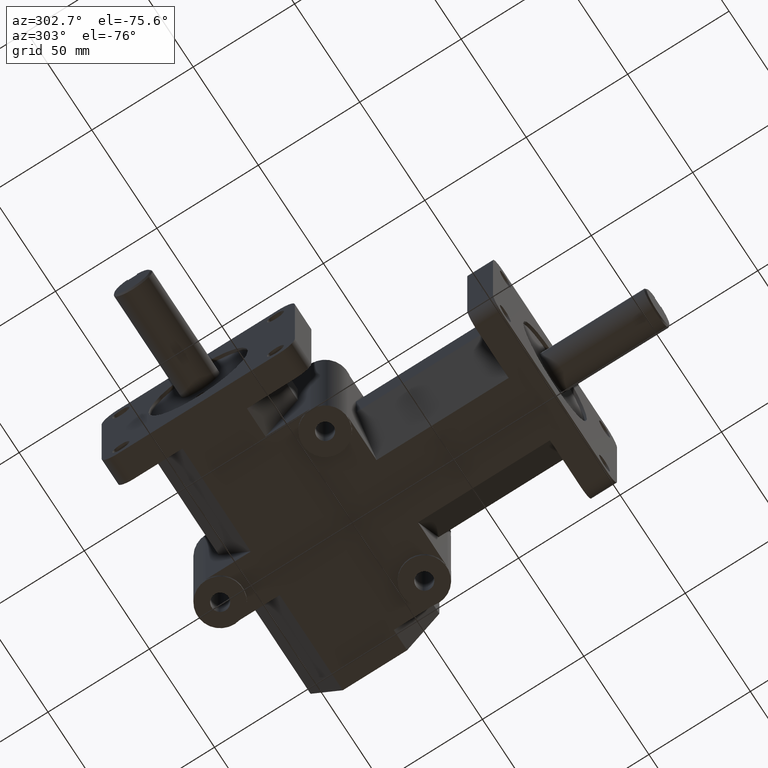
[diagram: clean part render]
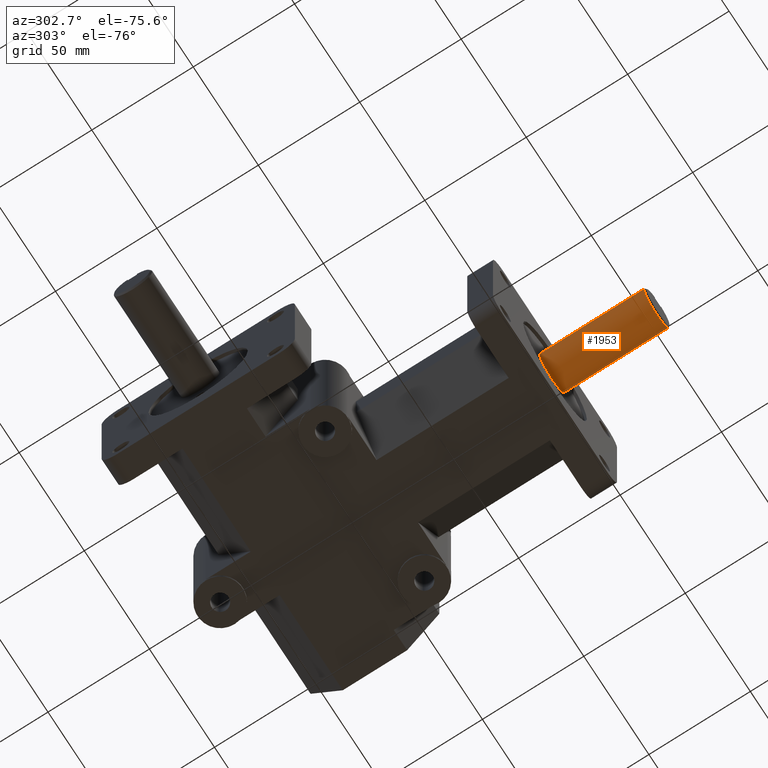
[diagram: same view with one face highlighted and labeled with its STEP entity id]
A machine part, auxiliary view. The second image highlights one B-rep face of the part: STEP entity #1953.
In plain terms, the highlighted cylindrical surface (bore or boss wall) has radius 9.525 mm, axis along (0, -1, 0).
Its self-contained STEP definition (entity closure, byte-faithful):
#130=LINE('',#3166,#321);
#131=LINE('',#3169,#322);
#132=LINE('',#3170,#323);
#321=VECTOR('',#2548,1.);
#322=VECTOR('',#2551,1.);
#323=VECTOR('',#2552,0.375);
#424=CYLINDRICAL_SURFACE('',#2138,0.375);
#516=FACE_OUTER_BOUND('',#645,.T.);
#645=EDGE_LOOP('',(#1527,#1528,#1529,#1530,#1531,#1532,#1533,#1534));
#739=CIRCLE('',#2048,0.375);
#787=CIRCLE('',#2135,0.375);
#788=CIRCLE('',#2136,0.375);
#790=CIRCLE('',#2139,0.375);
#824=VERTEX_POINT('',#2837);
#943=VERTEX_POINT('',#3151);
#944=VERTEX_POINT('',#3155);
#945=VERTEX_POINT('',#3157);
#947=VERTEX_POINT('',#3165);
#948=VERTEX_POINT('',#3167);
#1009=EDGE_CURVE('',#824,#824,#739,.T.);
#1166=EDGE_CURVE('',#943,#944,#787,.T.);
#1167=EDGE_CURVE('',#944,#945,#788,.T.);
#1170=EDGE_CURVE('',#943,#947,#130,.T.);
#1171=EDGE_CURVE('',#947,#948,#790,.T.);
#1172=EDGE_CURVE('',#948,#945,#131,.T.);
#1173=EDGE_CURVE('',#944,#824,#132,.T.);
#1527=ORIENTED_EDGE('',*,*,#1166,.F.);
#1528=ORIENTED_EDGE('',*,*,#1170,.T.);
#1529=ORIENTED_EDGE('',*,*,#1171,.T.);
#1530=ORIENTED_EDGE('',*,*,#1172,.T.);
#1531=ORIENTED_EDGE('',*,*,#1167,.F.);
#1532=ORIENTED_EDGE('',*,*,#1173,.T.);
#1533=ORIENTED_EDGE('',*,*,#1009,.F.);
#1534=ORIENTED_EDGE('',*,*,#1173,.F.);
#1953=ADVANCED_FACE('',(#516),#424,.T.);
#2048=AXIS2_PLACEMENT_3D('',#2838,#2258,#2259);
#2135=AXIS2_PLACEMENT_3D('',#3156,#2540,#2541);
#2136=AXIS2_PLACEMENT_3D('',#3158,#2542,#2543);
#2138=AXIS2_PLACEMENT_3D('',#3164,#2546,#2547);
#2139=AXIS2_PLACEMENT_3D('',#3168,#2549,#2550);
#2258=DIRECTION('center_axis',(0.,1.,0.));
#2259=DIRECTION('ref_axis',(1.,0.,0.));
#2540=DIRECTION('center_axis',(0.,-1.,0.));
#2541=DIRECTION('ref_axis',(1.,0.,0.));
#2542=DIRECTION('center_axis',(0.,-1.,0.));
#2543=DIRECTION('ref_axis',(1.,0.,0.));
#2546=DIRECTION('center_axis',(0.,-1.,0.));
#2547=DIRECTION('ref_axis',(1.,0.,0.));
#2548=DIRECTION('',(0.,1.,0.));
#2549=DIRECTION('center_axis',(0.,1.,0.));
#2550=DIRECTION('ref_axis',(1.,0.,0.));
#2551=DIRECTION('',(0.,-1.,0.));
#2552=DIRECTION('',(0.,1.,0.));
#2837=CARTESIAN_POINT('',(-0.375,0.06,-4.59242549680257E-17));
#2838=CARTESIAN_POINT('Origin',(0.,0.06,0.));
#3151=CARTESIAN_POINT('',(-0.0937499999999996,-1.97,0.363092188706945));
#3155=CARTESIAN_POINT('',(-0.375,-1.97,-4.59242549680257E-17));
#3156=CARTESIAN_POINT('Origin',(0.,-1.97,0.));
#3157=CARTESIAN_POINT('',(0.09375,-1.97,0.363092188706945));
#3158=CARTESIAN_POINT('Origin',(0.,-1.97,0.));
#3164=CARTESIAN_POINT('Origin',(0.,0.,0.));
#3165=CARTESIAN_POINT('',(-0.09375,-0.5,0.363092188706945));
#3166=CARTESIAN_POINT('',(-0.0937499999999996,0.,0.363092188706945));
#3167=CARTESIAN_POINT('',(0.09375,-0.5,0.363092188706945));
#3168=CARTESIAN_POINT('Origin',(0.,-0.5,0.));
#3169=CARTESIAN_POINT('',(0.09375,0.,0.363092188706945));
#3170=CARTESIAN_POINT('',(-0.375,0.,-4.59242549680257E-17));